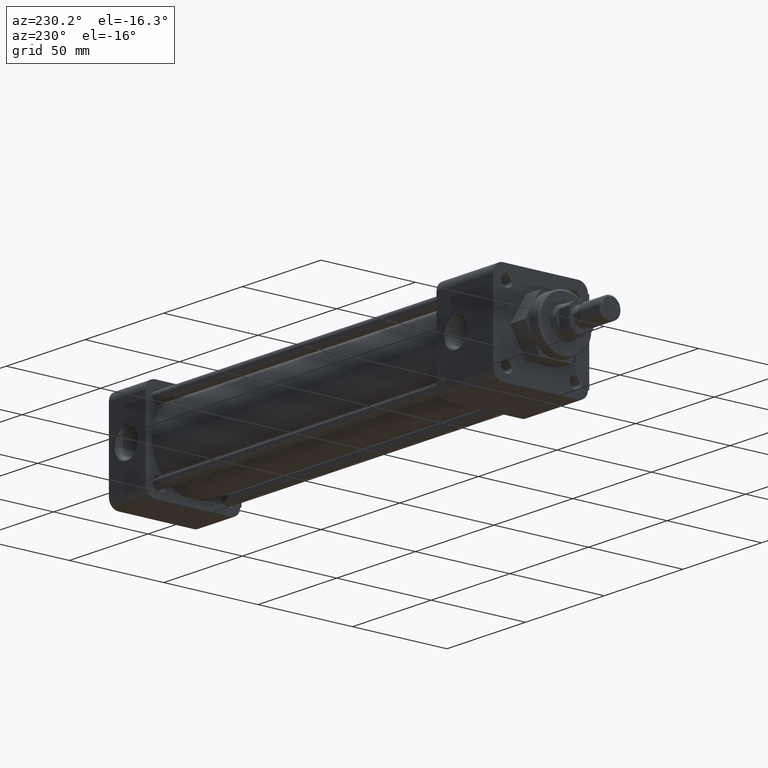
[diagram: clean part render]
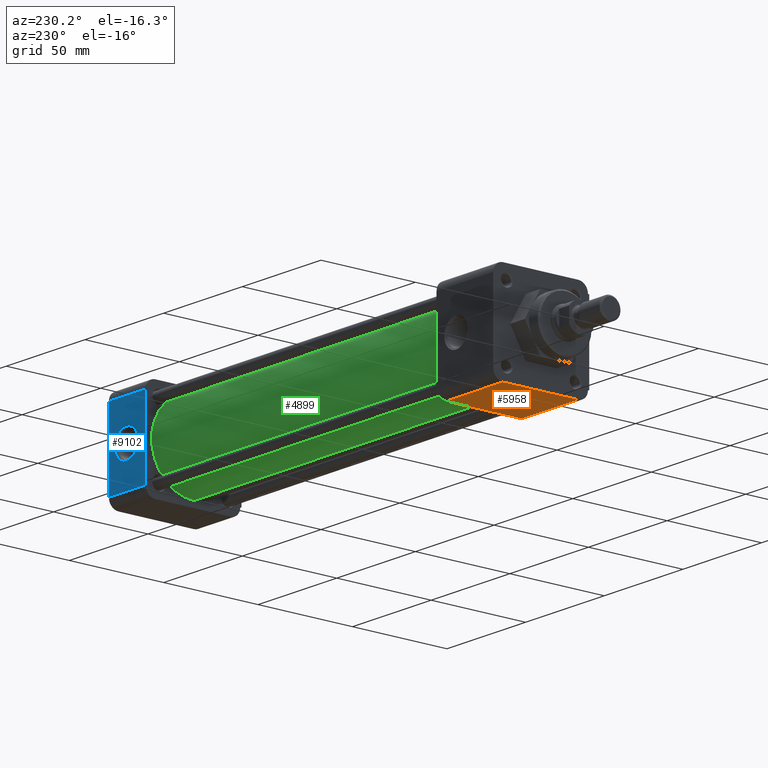
[diagram: same view with three faces highlighted in distinct colors, each labeled with its STEP entity id]
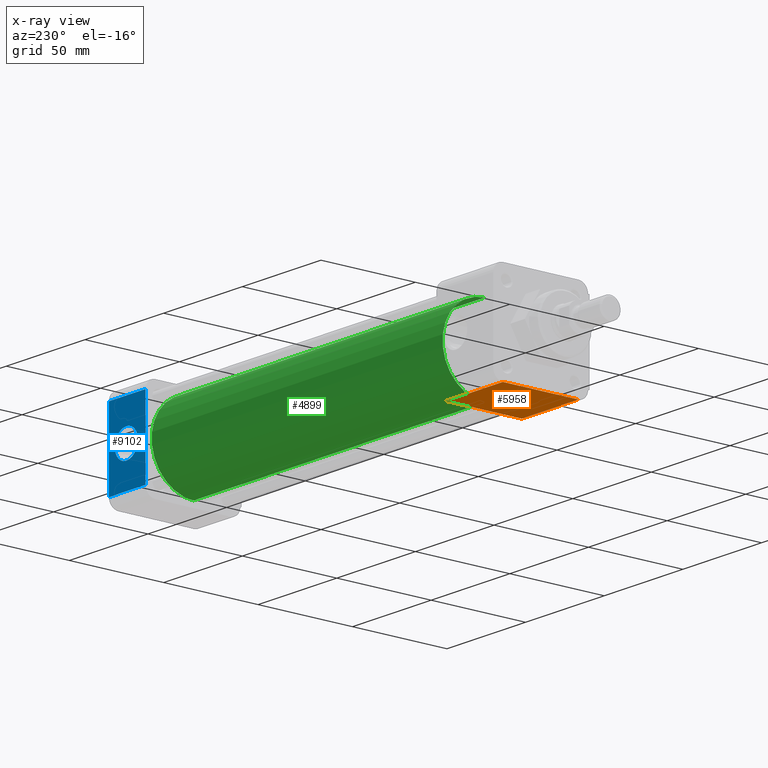
[diagram: x-ray of the same camera — body ghosted, the three highlighted faces saturated]
A machine part, auxiliary view with three faces highlighted in distinct colors.
The next image is the same camera in x-ray (body ghosted, the three faces saturated) — at least one of them is partly hidden behind the body in this view.
Their STEP definitions:

[orange] entity #5958 — the highlighted planar face has unit normal (0, 0, 1).
#19 = DIRECTION ( 'NONE',  ( 1.000000000000000000, 0.0000000000000000000, -0.0000000000000000000 ) ) ;
#307 = ORIENTED_EDGE ( 'NONE', *, *, #14756, .F. ) ;
#959 = VERTEX_POINT ( 'NONE', #10235 ) ;
#1143 = LINE ( 'NONE', #5488, #8479 ) ;
#1434 = DIRECTION ( 'NONE',  ( -1.000000000000000000, 0.0000000000000000000, 0.0000000000000000000 ) ) ;
#2365 = CARTESIAN_POINT ( 'NONE',  ( 0.0000000000000000000, -0.7750000000000000200, -1.000000000000000000 ) ) ;
#3460 = CARTESIAN_POINT ( 'NONE',  ( 1.419999999999999900, 0.8000000000000000400, -1.000000000000000000 ) ) ;
#5402 = VERTEX_POINT ( 'NONE', #7926 ) ;
#5488 = CARTESIAN_POINT ( 'NONE',  ( 1.419999999999999900, 0.8000000000000000400, -0.9999999999999998900 ) ) ;
#5496 = ORIENTED_EDGE ( 'NONE', *, *, #8587, .F. ) ;
#5670 = PLANE ( 'NONE',  #5801 ) ;
#5715 = CARTESIAN_POINT ( 'NONE',  ( 1.419999999999999900, -0.7750000000000000200, -1.000000000000000000 ) ) ;
#5801 = AXIS2_PLACEMENT_3D ( 'NONE', #5715, #13727, #6878 ) ;
#5958 = ADVANCED_FACE ( 'NONE', ( #12937 ), #5670, .F. ) ;
#5987 = VERTEX_POINT ( 'NONE', #3460 ) ;
#6082 = CARTESIAN_POINT ( 'NONE',  ( 1.419999999999999900, 0.8000000000000000400, -1.000000000000000200 ) ) ;
#6248 = CARTESIAN_POINT ( 'NONE',  ( 1.419999999999999900, -0.7750000000000000200, -1.000000000000000000 ) ) ;
#6548 = DIRECTION ( 'NONE',  ( -0.0000000000000000000, 1.000000000000000000, 0.0000000000000000000 ) ) ;
#6878 = DIRECTION ( 'NONE',  ( 1.000000000000000000, 0.0000000000000000000, -0.0000000000000000000 ) ) ;
#6892 = CARTESIAN_POINT ( 'NONE',  ( 1.419999999999999900, -0.7750000000000000200, -1.000000000000000000 ) ) ;
#7072 = LINE ( 'NONE', #2365, #7937 ) ;
#7926 = CARTESIAN_POINT ( 'NONE',  ( 0.0000000000000000000, 0.7999999999999999300, -1.000000000000000000 ) ) ;
#7937 = VECTOR ( 'NONE', #9217, 39.37007874015748100 ) ;
#8035 = LINE ( 'NONE', #6082, #13775 ) ;
#8479 = VECTOR ( 'NONE', #6548, 39.37007874015748100 ) ;
#8587 = EDGE_CURVE ( 'NONE', #959, #10754, #12000, .T. ) ;
#8905 = ORIENTED_EDGE ( 'NONE', *, *, #10375, .F. ) ;
#8935 = VECTOR ( 'NONE', #19, 39.37007874015748100 ) ;
#9217 = DIRECTION ( 'NONE',  ( 0.0000000000000000000, -1.000000000000000000, -0.0000000000000000000 ) ) ;
#9255 = EDGE_CURVE ( 'NONE', #5402, #959, #7072, .T. ) ;
#10235 = CARTESIAN_POINT ( 'NONE',  ( 0.0000000000000000000, -0.7750000000000000200, -1.000000000000000000 ) ) ;
#10375 = EDGE_CURVE ( 'NONE', #10754, #5987, #1143, .T. ) ;
#10754 = VERTEX_POINT ( 'NONE', #6248 ) ;
#11102 = EDGE_LOOP ( 'NONE', ( #307, #8905, #5496, #14646 ) ) ;
#12000 = LINE ( 'NONE', #6892, #8935 ) ;
#12937 = FACE_OUTER_BOUND ( 'NONE', #11102, .T. ) ;
#13727 = DIRECTION ( 'NONE',  ( 0.0000000000000000000, 0.0000000000000000000, 1.000000000000000000 ) ) ;
#13775 = VECTOR ( 'NONE', #1434, 39.37007874015748100 ) ;
#14646 = ORIENTED_EDGE ( 'NONE', *, *, #9255, .F. ) ;
#14756 = EDGE_CURVE ( 'NONE', #5987, #5402, #8035, .T. ) ;

[blue] entity #9102 — the highlighted planar face has unit normal (0, -1, 0).
#565 = CARTESIAN_POINT ( 'NONE',  ( 9.182999999999999800, 1.000000000000000200, 0.2885631396026789900 ) ) ;
#772 = DIRECTION ( 'NONE',  ( 0.0000000000000000000, -1.000000000000000000, 0.0000000000000000000 ) ) ;
#1142 = CIRCLE ( 'NONE', #6630, 0.2885631396026789900 ) ;
#1191 = EDGE_CURVE ( 'NONE', #7604, #2854, #1142, .T. ) ;
#1394 = VERTEX_POINT ( 'NONE', #10873 ) ;
#1652 = VECTOR ( 'NONE', #13349, 39.37007874015748100 ) ;
#1768 = CARTESIAN_POINT ( 'NONE',  ( 9.182999999999999800, 1.000000000000000200, -1.379779000048910000E-032 ) ) ;
#1869 = VECTOR ( 'NONE', #6405, 39.37007874015748100 ) ;
#2344 = EDGE_LOOP ( 'NONE', ( #14532, #5731, #7481, #4802 ) ) ;
#2532 = EDGE_CURVE ( 'NONE', #3386, #10194, #4896, .T. ) ;
#2555 = CIRCLE ( 'NONE', #10704, 0.2885631396026789900 ) ;
#2698 = DIRECTION ( 'NONE',  ( 0.0000000000000000000, 0.0000000000000000000, -1.000000000000000000 ) ) ;
#2854 = VERTEX_POINT ( 'NONE', #565 ) ;
#2928 = PLANE ( 'NONE',  #6335 ) ;
#3083 = VECTOR ( 'NONE', #8232, 39.37007874015748100 ) ;
#3386 = VERTEX_POINT ( 'NONE', #5647 ) ;
#3470 = CARTESIAN_POINT ( 'NONE',  ( 8.701000000000000500, 1.000000000000000200, -0.8000000000000000400 ) ) ;
#4479 = DIRECTION ( 'NONE',  ( 0.0000000000000000000, 1.000000000000000000, 0.0000000000000000000 ) ) ;
#4590 = VERTEX_POINT ( 'NONE', #12882 ) ;
#4634 = DIRECTION ( 'NONE',  ( 1.000000000000000000, -0.0000000000000000000, -0.0000000000000000000 ) ) ;
#4796 = CARTESIAN_POINT ( 'NONE',  ( 9.182999999999999800, 1.000000000000000200, -0.2885631396026789900 ) ) ;
#4802 = ORIENTED_EDGE ( 'NONE', *, *, #10901, .T. ) ;
#4896 = LINE ( 'NONE', #6358, #1869 ) ;
#4970 = ORIENTED_EDGE ( 'NONE', *, *, #1191, .F. ) ;
#5281 = FACE_BOUND ( 'NONE', #13812, .T. ) ;
#5647 = CARTESIAN_POINT ( 'NONE',  ( 9.621000000000000400, 1.000000000000000200, 0.8000000000000000400 ) ) ;
#5731 = ORIENTED_EDGE ( 'NONE', *, *, #12481, .F. ) ;
#5905 = EDGE_CURVE ( 'NONE', #2854, #7604, #2555, .T. ) ;
#6335 = AXIS2_PLACEMENT_3D ( 'NONE', #7634, #772, #8776 ) ;
#6358 = CARTESIAN_POINT ( 'NONE',  ( 8.701000000000000500, 1.000000000000000200, 0.8000000000000000400 ) ) ;
#6405 = DIRECTION ( 'NONE',  ( -1.000000000000000000, 0.0000000000000000000, 0.0000000000000000000 ) ) ;
#6630 = AXIS2_PLACEMENT_3D ( 'NONE', #1768, #9778, #2698 ) ;
#7481 = ORIENTED_EDGE ( 'NONE', *, *, #2532, .F. ) ;
#7604 = VERTEX_POINT ( 'NONE', #4796 ) ;
#7634 = CARTESIAN_POINT ( 'NONE',  ( 8.701000000000000500, 1.000000000000000200, 0.8000000000000000400 ) ) ;
#7713 = LINE ( 'NONE', #14396, #1652 ) ;
#8232 = DIRECTION ( 'NONE',  ( 0.0000000000000000000, -0.0000000000000000000, -1.000000000000000000 ) ) ;
#8776 = DIRECTION ( 'NONE',  ( -0.0000000000000000000, 0.0000000000000000000, 1.000000000000000000 ) ) ;
#8941 = VECTOR ( 'NONE', #4634, 39.37007874015748100 ) ;
#9102 = ADVANCED_FACE ( 'NONE', ( #14057, #5281 ), #2928, .F. ) ;
#9173 = LINE ( 'NONE', #12752, #3083 ) ;
#9778 = DIRECTION ( 'NONE',  ( 0.0000000000000000000, 1.000000000000000000, 0.0000000000000000000 ) ) ;
#10194 = VERTEX_POINT ( 'NONE', #13078 ) ;
#10704 = AXIS2_PLACEMENT_3D ( 'NONE', #11318, #4479, #12485 ) ;
#10873 = CARTESIAN_POINT ( 'NONE',  ( 9.621000000000000400, 1.000000000000000200, -0.8000000000000000400 ) ) ;
#10901 = EDGE_CURVE ( 'NONE', #3386, #1394, #7713, .T. ) ;
#11318 = CARTESIAN_POINT ( 'NONE',  ( 9.182999999999999800, 1.000000000000000200, -1.379779000048910000E-032 ) ) ;
#12011 = LINE ( 'NONE', #3470, #8941 ) ;
#12481 = EDGE_CURVE ( 'NONE', #10194, #4590, #9173, .T. ) ;
#12485 = DIRECTION ( 'NONE',  ( 0.0000000000000000000, 0.0000000000000000000, -1.000000000000000000 ) ) ;
#12752 = CARTESIAN_POINT ( 'NONE',  ( 8.701000000000000500, 1.000000000000000200, 0.8000000000000000400 ) ) ;
#12882 = CARTESIAN_POINT ( 'NONE',  ( 8.701000000000000500, 1.000000000000000200, -0.8000000000000000400 ) ) ;
#13078 = CARTESIAN_POINT ( 'NONE',  ( 8.701000000000000500, 1.000000000000000200, 0.8000000000000000400 ) ) ;
#13097 = ORIENTED_EDGE ( 'NONE', *, *, #5905, .F. ) ;
#13349 = DIRECTION ( 'NONE',  ( -0.0000000000000000000, -0.0000000000000000000, -1.000000000000000000 ) ) ;
#13812 = EDGE_LOOP ( 'NONE', ( #4970, #13097 ) ) ;
#14057 = FACE_OUTER_BOUND ( 'NONE', #2344, .T. ) ;
#14396 = CARTESIAN_POINT ( 'NONE',  ( 9.621000000000000400, 1.000000000000000200, -0.8000000000000000400 ) ) ;
#14508 = EDGE_CURVE ( 'NONE', #4590, #1394, #12011, .T. ) ;
#14532 = ORIENTED_EDGE ( 'NONE', *, *, #14508, .F. ) ;

[green] entity #4899 — the highlighted cylindrical surface (partial cylindrical patch) has radius 22.225 mm, axis along (1, 0, 0).
#134 = ORIENTED_EDGE ( 'NONE', *, *, #9735, .T. ) ;
#386 = VECTOR ( 'NONE', #14477, 39.37007874015748100 ) ;
#495 = VERTEX_POINT ( 'NONE', #7564 ) ;
#1096 = CARTESIAN_POINT ( 'NONE',  ( 8.700999999999998700, 0.0000000000000000000, 0.0000000000000000000 ) ) ;
#1336 = VECTOR ( 'NONE', #9762, 39.37007874015748100 ) ;
#1422 = EDGE_LOOP ( 'NONE', ( #4202, #134, #4174, #3892 ) ) ;
#1708 = CARTESIAN_POINT ( 'NONE',  ( 8.700999999999998700, 0.0000000000000000000, -0.8750000000000000000 ) ) ;
#1935 = VERTEX_POINT ( 'NONE', #8868 ) ;
#2242 = DIRECTION ( 'NONE',  ( 1.000000000000000000, -0.0000000000000000000, -0.0000000000000000000 ) ) ;
#3200 = EDGE_CURVE ( 'NONE', #13600, #1935, #9150, .T. ) ;
#3892 = ORIENTED_EDGE ( 'NONE', *, *, #7858, .F. ) ;
#4174 = ORIENTED_EDGE ( 'NONE', *, *, #3200, .T. ) ;
#4202 = ORIENTED_EDGE ( 'NONE', *, *, #6853, .T. ) ;
#4368 = LINE ( 'NONE', #1708, #1336 ) ;
#4414 = DIRECTION ( 'NONE',  ( -1.000000000000000000, 0.0000000000000000000, 0.0000000000000000000 ) ) ;
#4521 = CARTESIAN_POINT ( 'NONE',  ( 1.419999999999999900, 1.071565949253934000E-016, 0.8750000000000000000 ) ) ;
#4623 = CARTESIAN_POINT ( 'NONE',  ( 1.419999999999999900, 0.0000000000000000000, 0.0000000000000000000 ) ) ;
#4899 = ADVANCED_FACE ( 'NONE', ( #8998 ), #13314, .T. ) ;
#5536 = AXIS2_PLACEMENT_3D ( 'NONE', #1096, #2242, #7989 ) ;
#5766 = DIRECTION ( 'NONE',  ( 0.0000000000000000000, 0.0000000000000000000, -1.000000000000000000 ) ) ;
#6853 = EDGE_CURVE ( 'NONE', #495, #9982, #12461, .T. ) ;
#7168 = AXIS2_PLACEMENT_3D ( 'NONE', #4623, #12631, #5766 ) ;
#7564 = CARTESIAN_POINT ( 'NONE',  ( 1.419999999999999900, 0.0000000000000000000, -0.8750000000000000000 ) ) ;
#7654 = CARTESIAN_POINT ( 'NONE',  ( 8.700999999999998700, 1.071565949253934000E-016, 0.8750000000000000000 ) ) ;
#7858 = EDGE_CURVE ( 'NONE', #495, #1935, #4368, .T. ) ;
#7989 = DIRECTION ( 'NONE',  ( 0.0000000000000000000, 0.0000000000000000000, -1.000000000000000000 ) ) ;
#8773 = CARTESIAN_POINT ( 'NONE',  ( 8.700999999999998700, 1.071565949253934000E-016, 0.8750000000000000000 ) ) ;
#8868 = CARTESIAN_POINT ( 'NONE',  ( 8.700999999999998700, 0.0000000000000000000, -0.8750000000000000000 ) ) ;
#8946 = AXIS2_PLACEMENT_3D ( 'NONE', #11255, #4414, #12432 ) ;
#8998 = FACE_OUTER_BOUND ( 'NONE', #1422, .T. ) ;
#9150 = CIRCLE ( 'NONE', #8946, 0.8750000000000000000 ) ;
#9735 = EDGE_CURVE ( 'NONE', #9982, #13600, #12562, .T. ) ;
#9762 = DIRECTION ( 'NONE',  ( 1.000000000000000000, -0.0000000000000000000, -0.0000000000000000000 ) ) ;
#9982 = VERTEX_POINT ( 'NONE', #4521 ) ;
#11255 = CARTESIAN_POINT ( 'NONE',  ( 8.700999999999998700, 0.0000000000000000000, 0.0000000000000000000 ) ) ;
#12432 = DIRECTION ( 'NONE',  ( 0.0000000000000000000, 0.0000000000000000000, -1.000000000000000000 ) ) ;
#12461 = CIRCLE ( 'NONE', #7168, 0.8750000000000000000 ) ;
#12562 = LINE ( 'NONE', #8773, #386 ) ;
#12631 = DIRECTION ( 'NONE',  ( 1.000000000000000000, -0.0000000000000000000, -0.0000000000000000000 ) ) ;
#13314 = CYLINDRICAL_SURFACE ( 'NONE', #5536, 0.8750000000000000000 ) ;
#13600 = VERTEX_POINT ( 'NONE', #7654 ) ;
#14477 = DIRECTION ( 'NONE',  ( 1.000000000000000000, -0.0000000000000000000, -0.0000000000000000000 ) ) ;